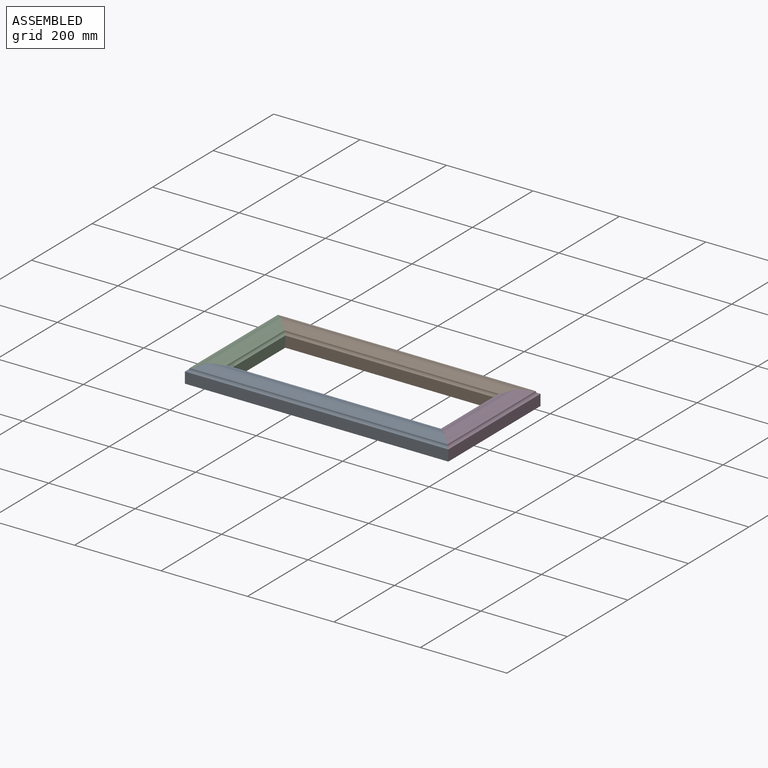
[diagram: assembled view]
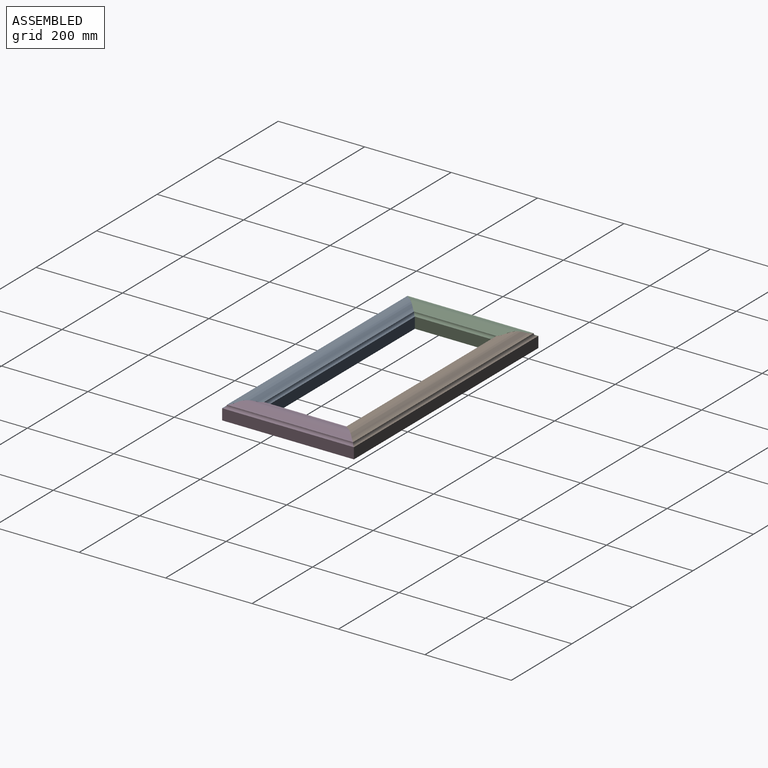
[diagram: assembled view, second angle]
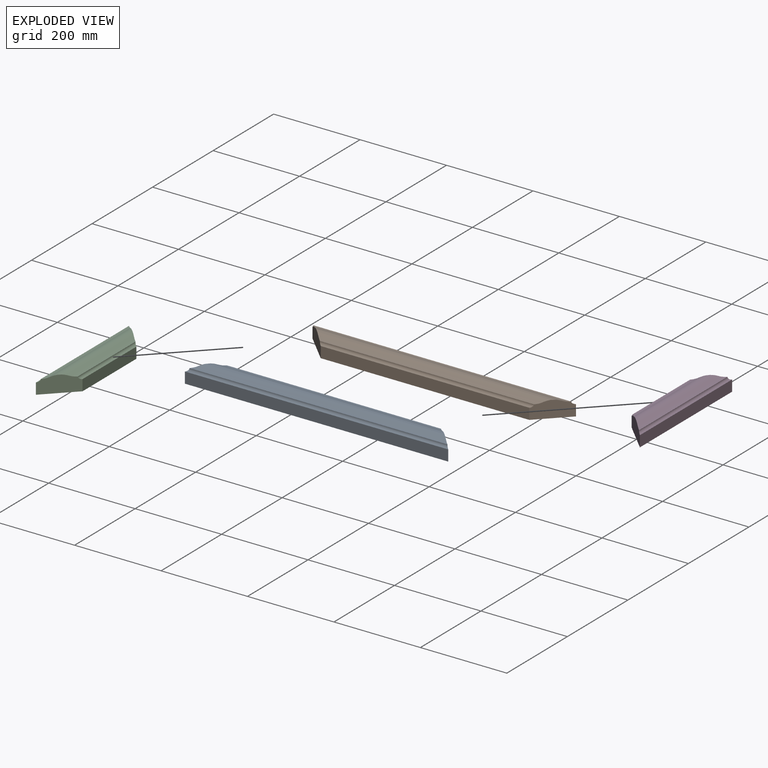
[diagram: exploded view]
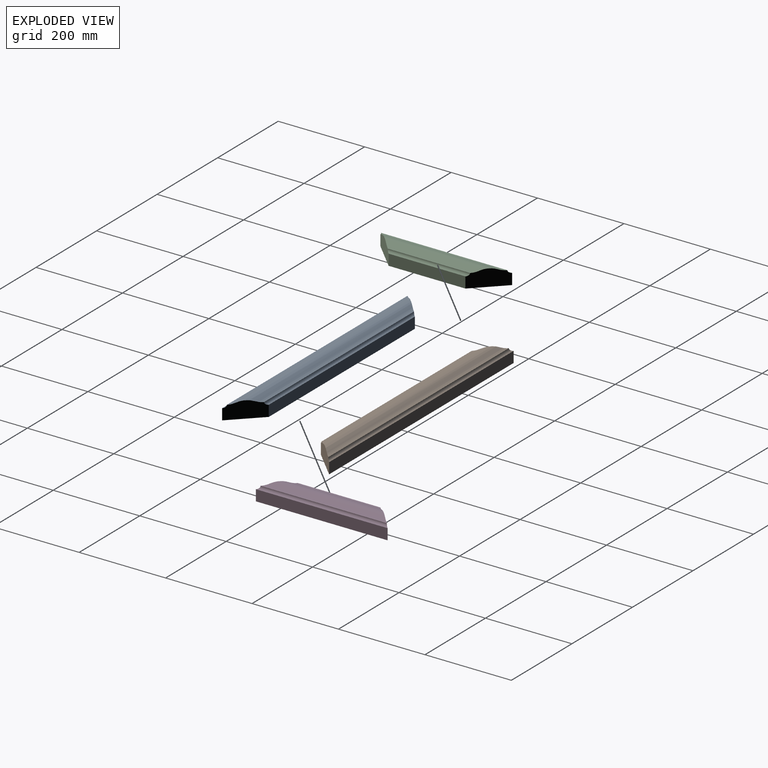
[diagram: exploded view, second angle]
ASSEMBLY  parts=4 mates=3
PART A: 10 faces, bbox 63.5x609.6x38.6 mm
  f0: plane 609.6x63.5mm, normal (0,0,-1), area 34677.4mm2, adj f1,f3,f8,f9
  f1: plane 482.6x25.4mm, normal (1,0,0), area 12258mm2, adj f0,f4,f8,f9
  f2: cylinder r=6.35mm len=609.6mm, axis (0,1,0), area 5999.8mm2, adj f3,f7,f8,f9
  f3: plane 609.6x25.4mm, normal (-1,0,0), area 15483.8mm2, adj f0,f2,f8,f9
  f4: cylinder r=6.35mm len=495.3mm, axis (0,1,0), area 4894.4mm2, adj f1,f5,f8,f9
  f5: cylinder r=25.4mm len=520.7mm, axis (0,1,0), area 6760.1mm2, adj f4,f6,f8,f9
  f6: cylinder r=25.4mm len=571.5mm, axis (0,1,0), area 14525.6mm2, adj f5,f7,f8,f9
  f7: cylinder r=25.4mm len=596.9mm, axis (0,1,0), area 7765.5mm2, adj f2,f6,f8,f9
  f8: plane 63.5x63.5mm, normal (0.71,-0.71,0), area 3006.1mm2, adj f0,f1,f2,f3,f4,f5,f6,f7
  f9: plane 63.5x63.5mm, normal (0.71,0.71,0), area 3006.1mm2, adj f0,f1,f2,f3,f4,f5,f6,f7
PART B: same geometry as A
PART C: 10 faces, bbox 63.5x304.8x38.6 mm
  f0: plane 304.8x63.5mm, normal (0,0,-1), area 15322.6mm2, adj f1,f3,f8,f9
  f1: plane 177.8x25.4mm, normal (1,0,0), area 4516.1mm2, adj f0,f4,f8,f9
  f2: cylinder r=6.35mm len=304.8mm, axis (0,1,0), area 2959.6mm2, adj f3,f7,f8,f9
  f3: plane 304.8x25.4mm, normal (-1,0,0), area 7741.9mm2, adj f0,f2,f8,f9
  f4: cylinder r=6.35mm len=190.5mm, axis (0,1,0), area 1854.1mm2, adj f1,f5,f8,f9
  f5: cylinder r=25.4mm len=215.9mm, axis (0,1,0), area 2706.4mm2, adj f4,f6,f8,f9
  f6: cylinder r=25.4mm len=266.7mm, axis (0,1,0), area 6418.3mm2, adj f5,f7,f8,f9
  f7: cylinder r=25.4mm len=292.1mm, axis (0,1,0), area 3711.9mm2, adj f2,f6,f8,f9
  f8: plane 63.5x63.5mm, normal (0.71,-0.71,0), area 3006.1mm2, adj f0,f1,f2,f3,f4,f5,f6,f7
  f9: plane 63.5x63.5mm, normal (0.71,0.71,0), area 3006.1mm2, adj f0,f1,f2,f3,f4,f5,f6,f7
PART D: same geometry as C
PLACE A rot(axis=(0,0,1),90deg) t=(-31.75,-273.05,0)mm
PLACE B rot(axis=(0,0,-1),90deg) t=(577.85,-31.75,0)mm
PLACE C at identity fixed
PLACE D rot(axis=(0,0,-1),180deg) t=(546.1,-304.8,0)mm
MATE fastened D.f9 <-> A.f8  axis (-0.71,-0.71,0) through (546.1,-273.05,16.99)mm
MATE fastened B.f9 <-> D.f8  axis (0.71,-0.71,0) through (546.1,-31.75,16.99)mm
MATE fastened C.f9 <-> B.f8  axis (0.71,0.71,0) through (0,-31.75,16.99)mm
